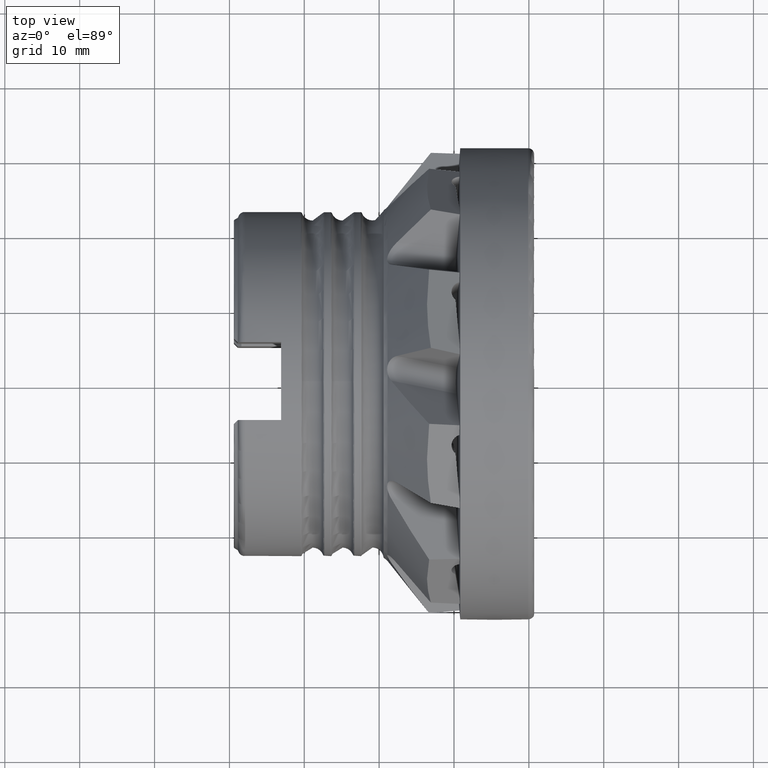
[diagram: clean part render]
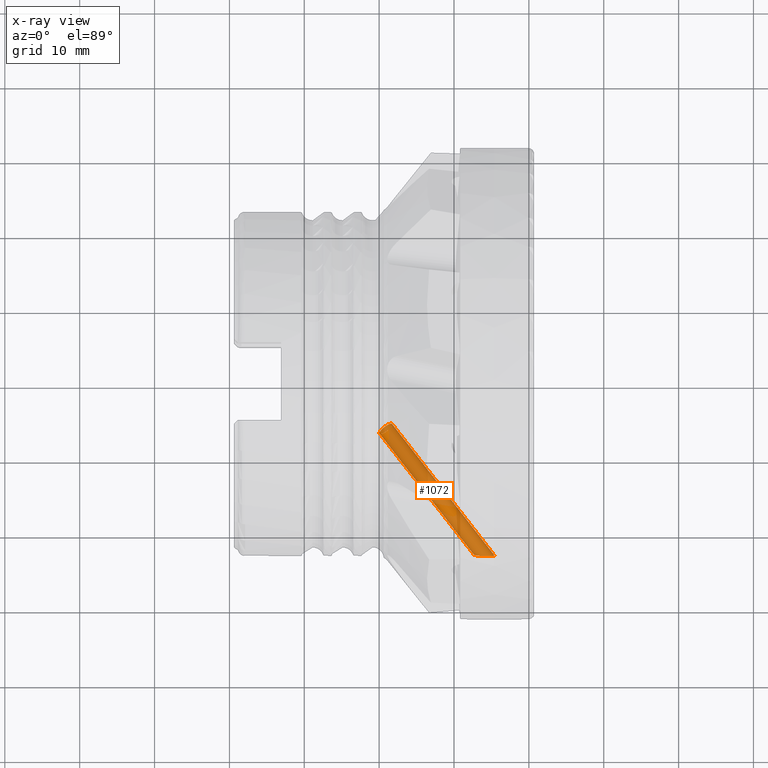
[diagram: x-ray — body ghosted, one internal face saturated and labeled with its STEP entity id]
A machine part, top view, then the same camera in x-ray: the body is ghosted and one INTERNAL B-rep face — a face not visible from any outside direction — is saturated and labeled: STEP entity #1072.
In plain terms, the highlighted cylindrical surface (bore or boss wall) has radius 1.05 mm, axis along (-0.5868, 0.7478, 0.3105).
Its self-contained STEP definition (entity closure, byte-faithful):
#74 = CARTESIAN_POINT ( 'NONE',  ( -6.374680893228695100, -23.05122693943743800, 3.062033213155335200 ) ) ;
#104 = CARTESIAN_POINT ( 'NONE',  ( -4.622505446930866800, -22.95392478352475200, 3.721719298743221000 ) ) ;
#130 = CARTESIAN_POINT ( 'NONE',  ( -6.566619796000087400, -22.63989994735691600, 5.306757881910219700 ) ) ;
#297 = FACE_OUTER_BOUND ( 'NONE', #4072, .T. ) ;
#615 = DIRECTION ( 'NONE',  ( 0.5868240888334638200, -0.7478280708194891000, -0.3104684609733753300 ) ) ;
#668 = DIRECTION ( 'NONE',  ( -0.7867040910776924600, -0.6173302787662545700, 0.0000000000000000000 ) ) ;
#748 = CARTESIAN_POINT ( 'NONE',  ( -5.894824189194958200, -23.07433630769222800, 2.881763806600458700 ) ) ;
#771 = CARTESIAN_POINT ( 'NONE',  ( -4.672762194173165200, -22.91213582269761800, 3.970787989664445100 ) ) ;
#797 = CARTESIAN_POINT ( 'NONE',  ( -6.820389670686057400, -22.64835237564503600, 5.270590710133867600 ) ) ;
#1072 = ADVANCED_FACE ( 'NONE', ( #297, #5672 ), #3637, .F. ) ;
#1417 = CARTESIAN_POINT ( 'NONE',  ( -5.382379405718132200, -23.07843221914111400, 2.848281767737619800 ) ) ;
#1438 = CARTESIAN_POINT ( 'NONE',  ( -4.770662481502914600, -22.87057252980874000, 4.203464167581871400 ) ) ;
#1468 = CARTESIAN_POINT ( 'NONE',  ( -7.056345868282123800, -22.67167431476713400, 5.169469255312064200 ) ) ;
#2094 = CARTESIAN_POINT ( 'NONE',  ( -4.977826687761401900, -23.06042317054335200, 2.990827870674615900 ) ) ;
#2120 = CARTESIAN_POINT ( 'NONE',  ( -5.006344206570728000, -22.80347416304549000, 4.554434178231248100 ) ) ;
#2141 = CARTESIAN_POINT ( 'NONE',  ( -7.244857704058192700, -22.71007008759158600, 4.998327561824944500 ) ) ;
#2734 = CARTESIAN_POINT ( 'NONE',  ( -7.297125378021431400, -22.90246759980766800, 4.028217146085160600 ) ) ;
#2759 = CARTESIAN_POINT ( 'NONE',  ( -4.783405001681768600, -23.03803725541592200, 3.158986116653800000 ) ) ;
#2786 = CARTESIAN_POINT ( 'NONE',  ( -5.379405788196382200, -22.73220872029499500, 4.897135201386341800 ) ) ;
#2819 = CARTESIAN_POINT ( 'NONE',  ( -7.360240871472369100, -22.75871331260839600, 4.772201895285403100 ) ) ;
#2821 = AXIS2_PLACEMENT_3D ( 'NONE', #8033, #8774, #668 ) ;
#3238 = AXIS2_PLACEMENT_3D ( 'NONE', #4650, #615, #5326 ) ;
#3413 = CARTESIAN_POINT ( 'NONE',  ( -7.030563769738826400, -22.97421513664638600, 3.595461246612682500 ) ) ;
#3435 = CARTESIAN_POINT ( 'NONE',  ( -4.659909164404858500, -23.00621856893078400, 3.383292997704980400 ) ) ;
#3460 = CARTESIAN_POINT ( 'NONE',  ( -5.817250954496951300, -22.67575966753221900, 5.151692178947222100 ) ) ;
#3485 = CARTESIAN_POINT ( 'NONE',  ( -7.397211773541370900, -22.80976120837410500, 4.522030638043254700 ) ) ;
#3522 = EDGE_CURVE ( 'NONE', #6103, #6103, #7275, .T. ) ;
#3637 = CYLINDRICAL_SURFACE ( 'NONE', #2821, 1.049999999999996700 ) ;
#4072 = EDGE_LOOP ( 'NONE', ( #4743 ) ) ;
#4095 = CARTESIAN_POINT ( 'NONE',  ( -6.661100334855199800, -23.02642101576798300, 3.243307881856273100 ) ) ;
#4122 = CARTESIAN_POINT ( 'NONE',  ( -4.618830620987024500, -22.96765753814115400, 3.636036936356998900 ) ) ;
#4149 = CARTESIAN_POINT ( 'NONE',  ( -6.308339758944868000, -22.64170935033796200, 5.299034583091061500 ) ) ;
#4176 = CARTESIAN_POINT ( 'NONE',  ( -7.381410413135508700, -22.84244199024428200, 4.353112194097143100 ) ) ;
#4650 = CARTESIAN_POINT ( 'NONE',  ( -19.11289364217299500, -6.191378201122653000, 10.99686586075843800 ) ) ;
#4743 = ORIENTED_EDGE ( 'NONE', *, *, #6113, .F. ) ;
#4799 = CARTESIAN_POINT ( 'NONE',  ( -6.218481593694442600, -23.06094131992789900, 2.987062790829533700 ) ) ;
#4826 = CARTESIAN_POINT ( 'NONE',  ( -4.649303236519034300, -22.92631926374880500, 3.888154127990496100 ) ) ;
#4855 = CARTESIAN_POINT ( 'NONE',  ( -6.652335041752470700, -22.64116514607215100, 5.301380253615380200 ) ) ;
#5120 = CIRCLE ( 'NONE', #3238, 1.049999999999995600 ) ;
#5308 = EDGE_LOOP ( 'NONE', ( #7430 ) ) ;
#5326 = DIRECTION ( 'NONE',  ( -0.7385249368284019200, -0.3371130810583407000, -0.5838969842891443800 ) ) ;
#5442 = CARTESIAN_POINT ( 'NONE',  ( -7.381410413135508700, -22.84244199024428200, 4.353112194097143100 ) ) ;
#5469 = CARTESIAN_POINT ( 'NONE',  ( -5.724281955162622300, -23.07820366658920700, 2.850133022394867800 ) ) ;
#5474 = VERTEX_POINT ( 'NONE', #7778 ) ;
#5496 = CARTESIAN_POINT ( 'NONE',  ( -4.733447174894088500, -22.88430901757414300, 4.128138321905118400 ) ) ;
#5522 = CARTESIAN_POINT ( 'NONE',  ( -6.903714821492902100, -22.65440584759829100, 5.244628138275668800 ) ) ;
#5672 = FACE_OUTER_BOUND ( 'NONE', #5308, .T. ) ;
#6103 = VERTEX_POINT ( 'NONE', #7058 ) ;
#6113 = EDGE_CURVE ( 'NONE', #5474, #5474, #5120, .T. ) ;
#6145 = CARTESIAN_POINT ( 'NONE',  ( -5.208852477291030100, -23.07481300866392700, 2.878446053885080700 ) ) ;
#6174 = CARTESIAN_POINT ( 'NONE',  ( -4.899026290310870600, -22.82981999673709300, 4.421299442235858900 ) ) ;
#6197 = CARTESIAN_POINT ( 'NONE',  ( -7.127505366976252300, -22.68317923262333100, 5.118978579688226600 ) ) ;
#6791 = CARTESIAN_POINT ( 'NONE',  ( -7.356256390418155700, -22.87449739601240100, 4.184905239145463100 ) ) ;
#6817 = CARTESIAN_POINT ( 'NONE',  ( -4.905824451188048700, -23.05405851309767600, 3.039858539769958200 ) ) ;
#6841 = CARTESIAN_POINT ( 'NONE',  ( -5.244932484657029500, -22.75497595246482200, 4.790863595560986200 ) ) ;
#6865 = CARTESIAN_POINT ( 'NONE',  ( -7.292874976275172100, -22.72587100240953400, 4.926228756026824300 ) ) ;
#7058 = CARTESIAN_POINT ( 'NONE',  ( -7.381410413135507800, -22.84244199024427500, 4.353112194097142200 ) ) ;
#7275 = B_SPLINE_CURVE_WITH_KNOTS ( 'NONE', 3,
 ( #5442, #6791, #2734, #7479, #3413, #8169, #4095, #74, #4799, #748, #5469, #1417, #6145, #2094, #6817, #2759, #7509, #3435, #8191, #4122, #104, #4826, #771, #5496, #1438, #6174, #2120, #6841, #2786, #7539, #3460, #8217, #4149, #130, #4855, #797, #5522, #1468, #6197, #2141, #6865, #2819, #7563, #3485, #8246, #4176 ),
 .UNSPECIFIED., .T., .F.,
 ( 4, 2, 2, 2, 2, 2, 2, 2, 2, 2, 2, 2, 2, 2, 2, 2, 2, 2, 2, 2, 2, 2, 4 ),
 ( 0.0000000000000000000, 0.0005093268512508775600, 0.001018653702501755100, 0.001527980553752632900, 0.002037307405003510200, 0.002546634256254387800, 0.003055961107505265800, 0.003310624533130704400, 0.003565287958756143400, 0.003819951384381582400, 0.004074614810007020500, 0.004329278235632459500, 0.004583941661257898500, 0.005093268512508779100, 0.005602595363759661400, 0.006111922215010542000, 0.006621249066261423500, 0.006875912491886863400, 0.007130575917512304100, 0.007385239343137745700, 0.007639902768763186400, 0.007894566194388627200, 0.008149229620014067000 ),
 .UNSPECIFIED. ) ;
#7430 = ORIENTED_EDGE ( 'NONE', *, *, #3522, .T. ) ;
#7479 = CARTESIAN_POINT ( 'NONE',  ( -7.133048777267040600, -22.95286303876366700, 3.730366451169521800 ) ) ;
#7509 = CARTESIAN_POINT ( 'NONE',  ( -4.732683954511034400, -23.02828818963758600, 3.229660571133278400 ) ) ;
#7539 = CARTESIAN_POINT ( 'NONE',  ( -5.665757587451851800, -22.69265143627485100, 5.077284439092035300 ) ) ;
#7563 = CARTESIAN_POINT ( 'NONE',  ( -7.380618595014038200, -22.77609134181295400, 4.688670458012968100 ) ) ;
#7778 = CARTESIAN_POINT ( 'NONE',  ( -19.88834482584281500, -6.545346936233909400, 10.38377402725483900 ) ) ;
#8033 = CARTESIAN_POINT ( 'NONE',  ( 4.360069911165555600, -36.10450103390221700, -1.421872578176577100 ) ) ;
#8169 = CARTESIAN_POINT ( 'NONE',  ( -6.795084144370044900, -23.01100236739244000, 3.351965508274969100 ) ) ;
#8191 = CARTESIAN_POINT ( 'NONE',  ( -4.637369703666212900, -22.99378379764604200, 3.466981981348462100 ) ) ;
#8217 = CARTESIAN_POINT ( 'NONE',  ( -6.140242244072938500, -22.65016005721918900, 5.263103475009606000 ) ) ;
#8246 = CARTESIAN_POINT ( 'NONE',  ( -7.393987424494185700, -22.82641428736022200, 4.437215671572983100 ) ) ;
#8774 = DIRECTION ( 'NONE',  ( -0.5868240888334638200, 0.7478280708194891000, 0.3104684609733753800 ) ) ;